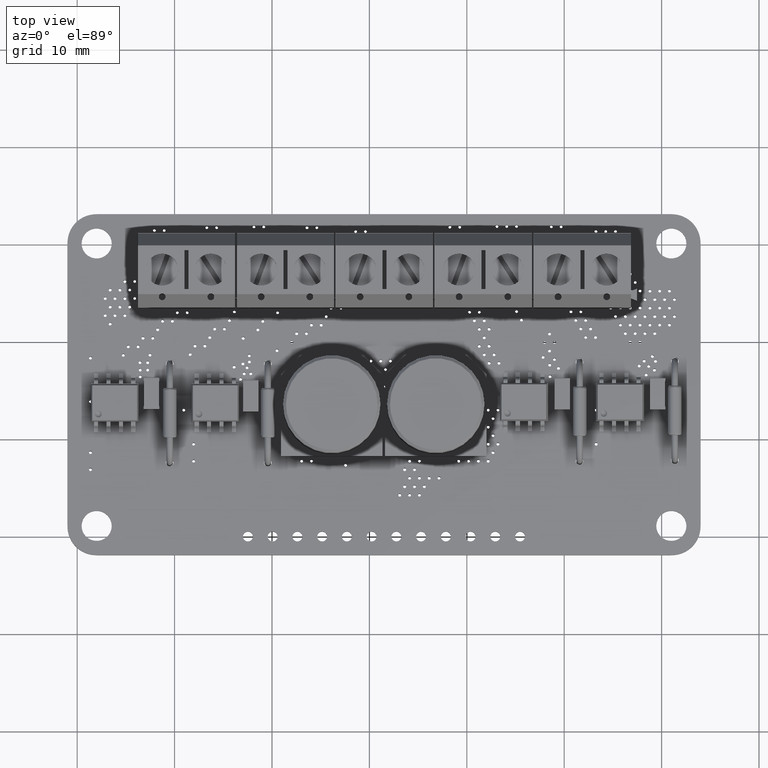
[diagram: clean part render]
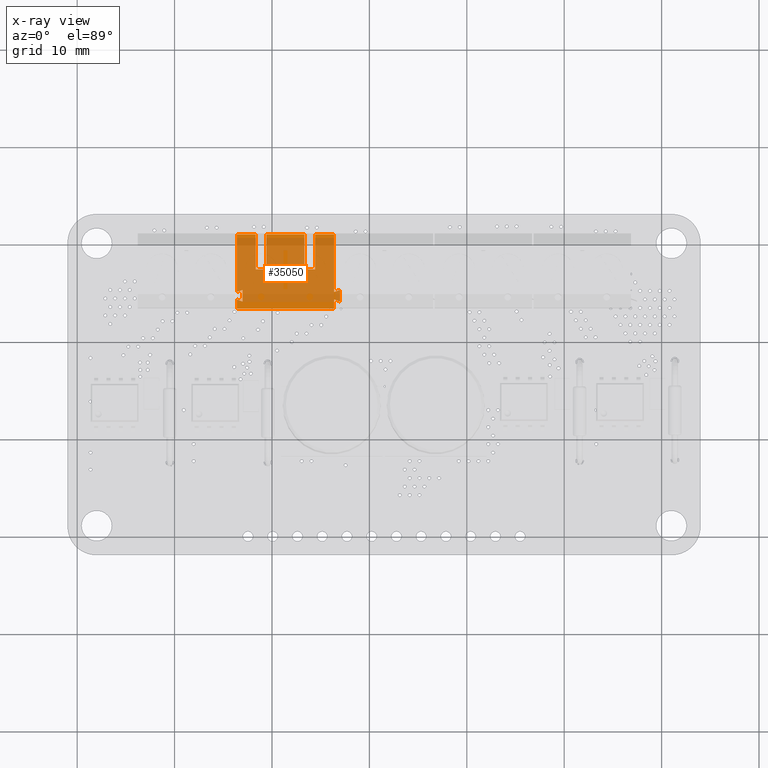
[diagram: x-ray — body ghosted, one internal face saturated and labeled with its STEP entity id]
A machine part, top view, then the same camera in x-ray: the body is ghosted and one INTERNAL B-rep face — a face not visible from any outside direction — is saturated and labeled: STEP entity #35050.
In plain terms, the highlighted planar face has unit normal (-0, 0, 1).
Its self-contained STEP definition (entity closure, byte-faithful):
#34969 = VERTEX_POINT('',#34970);
#34970 = CARTESIAN_POINT('',(5.,0.E+000,-2.11838214056));
#34985 = VERTEX_POINT('',#34986);
#34986 = CARTESIAN_POINT('',(5.,0.E+000,-2.88161785944));
#34992 = EDGE_CURVE('',#34985,#34993,#34995,.T.);
#34993 = VERTEX_POINT('',#34994);
#34994 = CARTESIAN_POINT('',(5.,0.E+000,-3.8));
#34995 = LINE('',#34996,#34997);
#34996 = CARTESIAN_POINT('',(5.,0.E+000,-3.8));
#34997 = VECTOR('',#34998,1.);
#34998 = DIRECTION('',(-1.141265444722E-016,-0.E+000,-1.));
#35033 = VERTEX_POINT('',#35034);
#35034 = CARTESIAN_POINT('',(5.,0.E+000,3.8));
#35040 = EDGE_CURVE('',#35033,#34969,#35041,.T.);
#35041 = LINE('',#35042,#35043);
#35042 = CARTESIAN_POINT('',(5.,0.E+000,-3.8));
#35043 = VECTOR('',#35044,1.);
#35044 = DIRECTION('',(-1.141265444722E-016,-0.E+000,-1.));
#35050 = ADVANCED_FACE('',(#35051),#35195,.F.);
#35051 = FACE_BOUND('',#35052,.T.);
#35052 = EDGE_LOOP('',(#35053,#35063,#35071,#35079,#35087,#35095,#35103,
    #35111,#35119,#35127,#35135,#35143,#35151,#35157,#35158,#35166,
    #35174,#35180,#35181,#35189));
#35053 = ORIENTED_EDGE('',*,*,#35054,.F.);
#35054 = EDGE_CURVE('',#35055,#35057,#35059,.T.);
#35055 = VERTEX_POINT('',#35056);
#35056 = CARTESIAN_POINT('',(1.95,0.E+000,0.2));
#35057 = VERTEX_POINT('',#35058);
#35058 = CARTESIAN_POINT('',(3.05,0.E+000,0.2));
#35059 = LINE('',#35060,#35061);
#35060 = CARTESIAN_POINT('',(1.95,0.E+000,0.2));
#35061 = VECTOR('',#35062,1.);
#35062 = DIRECTION('',(1.,0.E+000,0.E+000));
#35063 = ORIENTED_EDGE('',*,*,#35064,.T.);
#35064 = EDGE_CURVE('',#35055,#35065,#35067,.T.);
#35065 = VERTEX_POINT('',#35066);
#35066 = CARTESIAN_POINT('',(1.95,0.E+000,3.8));
#35067 = LINE('',#35068,#35069);
#35068 = CARTESIAN_POINT('',(1.95,0.E+000,0.2));
#35069 = VECTOR('',#35070,1.);
#35070 = DIRECTION('',(-0.E+000,-0.E+000,1.));
#35071 = ORIENTED_EDGE('',*,*,#35072,.F.);
#35072 = EDGE_CURVE('',#35073,#35065,#35075,.T.);
#35073 = VERTEX_POINT('',#35074);
#35074 = CARTESIAN_POINT('',(-1.95,0.E+000,3.8));
#35075 = LINE('',#35076,#35077);
#35076 = CARTESIAN_POINT('',(-5.,0.E+000,3.8));
#35077 = VECTOR('',#35078,1.);
#35078 = DIRECTION('',(1.,0.E+000,4.336808689942E-017));
#35079 = ORIENTED_EDGE('',*,*,#35080,.F.);
#35080 = EDGE_CURVE('',#35081,#35073,#35083,.T.);
#35081 = VERTEX_POINT('',#35082);
#35082 = CARTESIAN_POINT('',(-1.95,0.E+000,0.2));
#35083 = LINE('',#35084,#35085);
#35084 = CARTESIAN_POINT('',(-1.95,0.E+000,0.2));
#35085 = VECTOR('',#35086,1.);
#35086 = DIRECTION('',(-0.E+000,-0.E+000,1.));
#35087 = ORIENTED_EDGE('',*,*,#35088,.F.);
#35088 = EDGE_CURVE('',#35089,#35081,#35091,.T.);
#35089 = VERTEX_POINT('',#35090);
#35090 = CARTESIAN_POINT('',(-3.05,0.E+000,0.2));
#35091 = LINE('',#35092,#35093);
#35092 = CARTESIAN_POINT('',(-3.05,0.E+000,0.2));
#35093 = VECTOR('',#35094,1.);
#35094 = DIRECTION('',(1.,0.E+000,0.E+000));
#35095 = ORIENTED_EDGE('',*,*,#35096,.T.);
#35096 = EDGE_CURVE('',#35089,#35097,#35099,.T.);
#35097 = VERTEX_POINT('',#35098);
#35098 = CARTESIAN_POINT('',(-3.05,0.E+000,3.8));
#35099 = LINE('',#35100,#35101);
#35100 = CARTESIAN_POINT('',(-3.05,0.E+000,0.2));
#35101 = VECTOR('',#35102,1.);
#35102 = DIRECTION('',(-0.E+000,-0.E+000,1.));
#35103 = ORIENTED_EDGE('',*,*,#35104,.F.);
#35104 = EDGE_CURVE('',#35105,#35097,#35107,.T.);
#35105 = VERTEX_POINT('',#35106);
#35106 = CARTESIAN_POINT('',(-5.,0.E+000,3.8));
#35107 = LINE('',#35108,#35109);
#35108 = CARTESIAN_POINT('',(-5.,0.E+000,3.8));
#35109 = VECTOR('',#35110,1.);
#35110 = DIRECTION('',(1.,0.E+000,4.336808689942E-017));
#35111 = ORIENTED_EDGE('',*,*,#35112,.F.);
#35112 = EDGE_CURVE('',#35113,#35105,#35115,.T.);
#35113 = VERTEX_POINT('',#35114);
#35114 = CARTESIAN_POINT('',(-5.,0.E+000,-2.11838214056));
#35115 = LINE('',#35116,#35117);
#35116 = CARTESIAN_POINT('',(-5.,0.E+000,-3.8));
#35117 = VECTOR('',#35118,1.);
#35118 = DIRECTION('',(1.141265444722E-016,0.E+000,1.));
#35119 = ORIENTED_EDGE('',*,*,#35120,.F.);
#35120 = EDGE_CURVE('',#35121,#35113,#35123,.T.);
#35121 = VERTEX_POINT('',#35122);
#35122 = CARTESIAN_POINT('',(-5.6,0.E+000,-1.9));
#35123 = LINE('',#35124,#35125);
#35124 = CARTESIAN_POINT('',(-5.6,0.E+000,-1.9));
#35125 = VECTOR('',#35126,1.);
#35126 = DIRECTION('',(0.939692620786,0.E+000,-0.342020143326));
#35127 = ORIENTED_EDGE('',*,*,#35128,.F.);
#35128 = EDGE_CURVE('',#35129,#35121,#35131,.T.);
#35129 = VERTEX_POINT('',#35130);
#35130 = CARTESIAN_POINT('',(-5.6,0.E+000,-3.1));
#35131 = LINE('',#35132,#35133);
#35132 = CARTESIAN_POINT('',(-5.6,0.E+000,-3.1));
#35133 = VECTOR('',#35134,1.);
#35134 = DIRECTION('',(0.E+000,0.E+000,1.));
#35135 = ORIENTED_EDGE('',*,*,#35136,.F.);
#35136 = EDGE_CURVE('',#35137,#35129,#35139,.T.);
#35137 = VERTEX_POINT('',#35138);
#35138 = CARTESIAN_POINT('',(-5.,0.E+000,-2.88161785944));
#35139 = LINE('',#35140,#35141);
#35140 = CARTESIAN_POINT('',(-5.6,0.E+000,-3.1));
#35141 = VECTOR('',#35142,1.);
#35142 = DIRECTION('',(-0.939692620786,-0.E+000,-0.342020143326));
#35143 = ORIENTED_EDGE('',*,*,#35144,.F.);
#35144 = EDGE_CURVE('',#35145,#35137,#35147,.T.);
#35145 = VERTEX_POINT('',#35146);
#35146 = CARTESIAN_POINT('',(-5.,0.E+000,-3.8));
#35147 = LINE('',#35148,#35149);
#35148 = CARTESIAN_POINT('',(-5.,0.E+000,-3.8));
#35149 = VECTOR('',#35150,1.);
#35150 = DIRECTION('',(1.141265444722E-016,0.E+000,1.));
#35151 = ORIENTED_EDGE('',*,*,#35152,.F.);
#35152 = EDGE_CURVE('',#34993,#35145,#35153,.T.);
#35153 = LINE('',#35154,#35155);
#35154 = CARTESIAN_POINT('',(-5.,0.E+000,-3.8));
#35155 = VECTOR('',#35156,1.);
#35156 = DIRECTION('',(-1.,-0.E+000,-0.E+000));
#35157 = ORIENTED_EDGE('',*,*,#34992,.F.);
#35158 = ORIENTED_EDGE('',*,*,#35159,.T.);
#35159 = EDGE_CURVE('',#34985,#35160,#35162,.T.);
#35160 = VERTEX_POINT('',#35161);
#35161 = CARTESIAN_POINT('',(4.4,0.E+000,-3.1));
#35162 = LINE('',#35163,#35164);
#35163 = CARTESIAN_POINT('',(5.,0.E+000,-2.88161785944));
#35164 = VECTOR('',#35165,1.);
#35165 = DIRECTION('',(-0.939692620786,0.E+000,-0.342020143326));
#35166 = ORIENTED_EDGE('',*,*,#35167,.T.);
#35167 = EDGE_CURVE('',#35160,#35168,#35170,.T.);
#35168 = VERTEX_POINT('',#35169);
#35169 = CARTESIAN_POINT('',(4.4,0.E+000,-1.9));
#35170 = LINE('',#35171,#35172);
#35171 = CARTESIAN_POINT('',(4.4,0.E+000,-3.1));
#35172 = VECTOR('',#35173,1.);
#35173 = DIRECTION('',(0.E+000,0.E+000,1.));
#35174 = ORIENTED_EDGE('',*,*,#35175,.T.);
#35175 = EDGE_CURVE('',#35168,#34969,#35176,.T.);
#35176 = LINE('',#35177,#35178);
#35177 = CARTESIAN_POINT('',(4.4,0.E+000,-1.9));
#35178 = VECTOR('',#35179,1.);
#35179 = DIRECTION('',(0.939692620786,0.E+000,-0.342020143326));
#35180 = ORIENTED_EDGE('',*,*,#35040,.F.);
#35181 = ORIENTED_EDGE('',*,*,#35182,.F.);
#35182 = EDGE_CURVE('',#35183,#35033,#35185,.T.);
#35183 = VERTEX_POINT('',#35184);
#35184 = CARTESIAN_POINT('',(3.05,0.E+000,3.8));
#35185 = LINE('',#35186,#35187);
#35186 = CARTESIAN_POINT('',(-5.,0.E+000,3.8));
#35187 = VECTOR('',#35188,1.);
#35188 = DIRECTION('',(1.,0.E+000,4.336808689942E-017));
#35189 = ORIENTED_EDGE('',*,*,#35190,.F.);
#35190 = EDGE_CURVE('',#35057,#35183,#35191,.T.);
#35191 = LINE('',#35192,#35193);
#35192 = CARTESIAN_POINT('',(3.05,0.E+000,0.2));
#35193 = VECTOR('',#35194,1.);
#35194 = DIRECTION('',(-0.E+000,-0.E+000,1.));
#35195 = PLANE('',#35196);
#35196 = AXIS2_PLACEMENT_3D('',#35197,#35198,#35199);
#35197 = CARTESIAN_POINT('',(-5.,0.E+000,-3.8));
#35198 = DIRECTION('',(0.E+000,1.,0.E+000));
#35199 = DIRECTION('',(0.E+000,-0.E+000,1.));